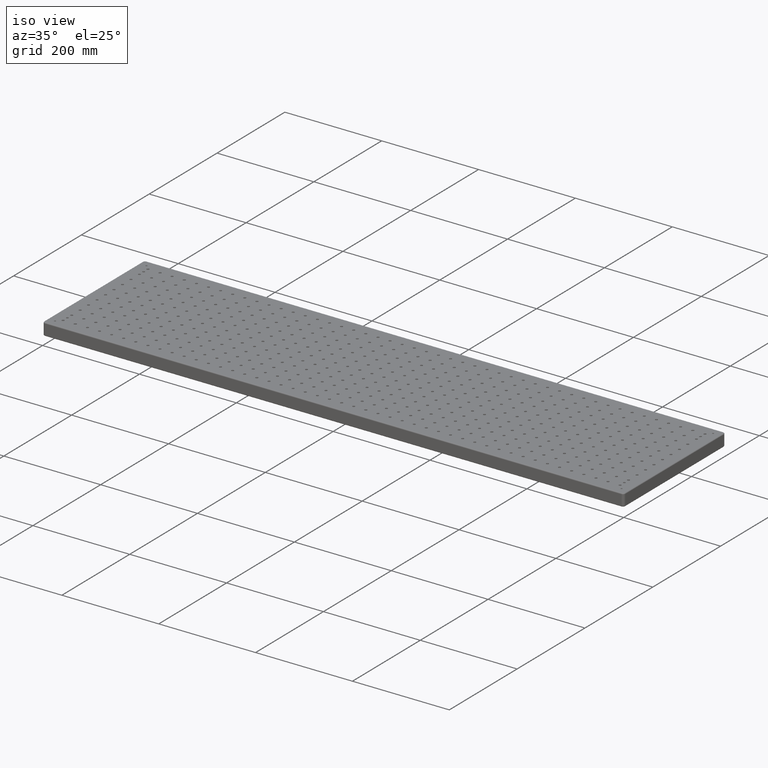
[diagram: clean part render]
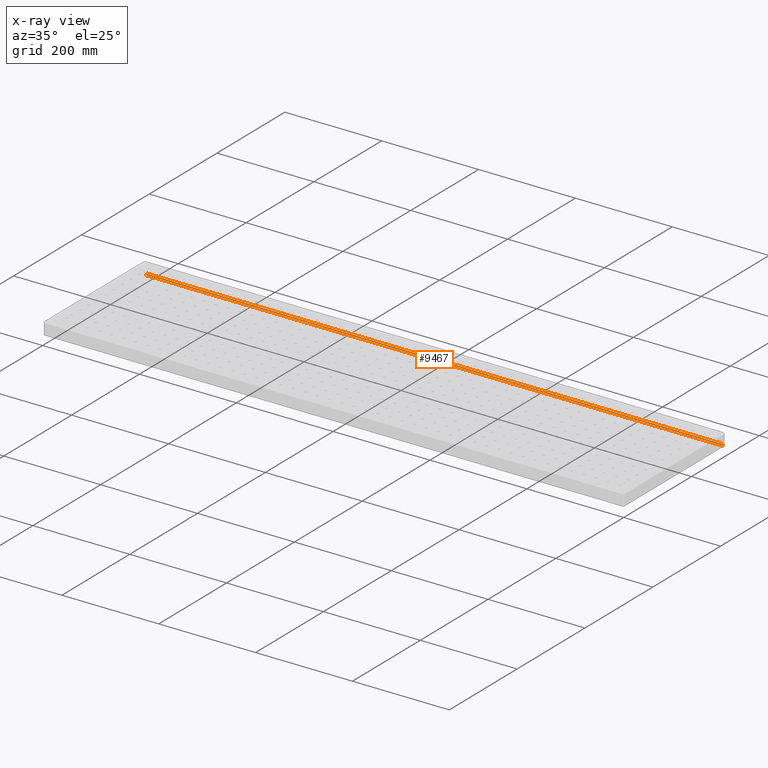
[diagram: x-ray — body ghosted, one internal face saturated and labeled with its STEP entity id]
A machine part, iso view, then the same camera in x-ray: the body is ghosted and one INTERNAL B-rep face — a face not visible from any outside direction — is saturated and labeled: STEP entity #9467.
In plain terms, the highlighted cylindrical surface (edge-blend (fillet) strip) has radius 2 mm, axis along (-1, 0, 0).
Its self-contained STEP definition (entity closure, byte-faithful):
#361 = VERTEX_POINT ( 'NONE', #32983 ) ;
#2339 = ORIENTED_EDGE ( 'NONE', *, *, #34381, .T. ) ;
#3713 = DIRECTION ( 'NONE',  ( 1.000000000000000000, -0.0000000000000000000, 0.0000000000000000000 ) ) ;
#5624 = DIRECTION ( 'NONE',  ( 1.000000000000000000, -0.0000000000000000000, 0.0000000000000000000 ) ) ;
#6771 = ORIENTED_EDGE ( 'NONE', *, *, #9692, .F. ) ;
#8160 = DIRECTION ( 'NONE',  ( 1.000000000000000000, -4.625929269271485800E-017, -0.0000000000000000000 ) ) ;
#8981 = AXIS2_PLACEMENT_3D ( 'NONE', #38976, #5624, #24062 ) ;
#9467 = ADVANCED_FACE ( 'NONE', ( #39057 ), #36168, .T. ) ;
#9692 = EDGE_CURVE ( 'NONE', #32741, #24093, #18888, .T. ) ;
#9813 = DIRECTION ( 'NONE',  ( -1.000000000000000000, 4.625929269271485800E-017, 0.0000000000000000000 ) ) ;
#11742 = ORIENTED_EDGE ( 'NONE', *, *, #23998, .F. ) ;
#12145 = VECTOR ( 'NONE', #9813, 1000.000000000000000 ) ;
#12830 = AXIS2_PLACEMENT_3D ( 'NONE', #13361, #28436, #22785 ) ;
#13361 = CARTESIAN_POINT ( 'NONE',  ( -9.251858538542971600E-017, 298.0000000000000600, -23.39999999999999900 ) ) ;
#16112 = DIRECTION ( 'NONE',  ( 0.0000000000000000000, 0.0000000000000000000, -1.000000000000000000 ) ) ;
#18055 = VECTOR ( 'NONE', #8160, 1000.000000000000000 ) ;
#18815 = ORIENTED_EDGE ( 'NONE', *, *, #30029, .F. ) ;
#18888 = LINE ( 'NONE', #34139, #12145 ) ;
#19133 = CIRCLE ( 'NONE', #8981, 2.000000000000001800 ) ;
#21785 = VERTEX_POINT ( 'NONE', #35911 ) ;
#21934 = CARTESIAN_POINT ( 'NONE',  ( 5.000000000000000000, 298.0000000000000600, -23.39999999999999900 ) ) ;
#22785 = DIRECTION ( 'NONE',  ( -4.625929269271481500E-017, -1.000000000000000000, 0.0000000000000000000 ) ) ;
#23998 = EDGE_CURVE ( 'NONE', #21785, #361, #32962, .T. ) ;
#24062 = DIRECTION ( 'NONE',  ( 0.0000000000000000000, 0.0000000000000000000, -1.000000000000000000 ) ) ;
#24093 = VERTEX_POINT ( 'NONE', #38907 ) ;
#24343 = EDGE_LOOP ( 'NONE', ( #2339, #6771, #18815, #11742 ) ) ;
#25608 = AXIS2_PLACEMENT_3D ( 'NONE', #21934, #3713, #16112 ) ;
#28436 = DIRECTION ( 'NONE',  ( -1.000000000000000000, 4.625929269271485800E-017, 0.0000000000000000000 ) ) ;
#30029 = EDGE_CURVE ( 'NONE', #361, #32741, #19133, .T. ) ;
#32741 = VERTEX_POINT ( 'NONE', #38633 ) ;
#32962 = LINE ( 'NONE', #39781, #18055 ) ;
#32983 = CARTESIAN_POINT ( 'NONE',  ( 1195.000000000000000, 298.0000000000000000, -25.39999999999999900 ) ) ;
#33055 = CIRCLE ( 'NONE', #25608, 2.000000000000001800 ) ;
#34139 = CARTESIAN_POINT ( 'NONE',  ( 0.0000000000000000000, 300.0000000000000600, -23.39999999999999900 ) ) ;
#34381 = EDGE_CURVE ( 'NONE', #21785, #24093, #33055, .T. ) ;
#35911 = CARTESIAN_POINT ( 'NONE',  ( 5.000000000000000000, 298.0000000000000600, -25.39999999999999900 ) ) ;
#36168 = CYLINDRICAL_SURFACE ( 'NONE', #12830, 2.000000000000001800 ) ;
#38633 = CARTESIAN_POINT ( 'NONE',  ( 1195.000000000000000, 300.0000000000000000, -23.39999999999999900 ) ) ;
#38907 = CARTESIAN_POINT ( 'NONE',  ( 5.000000000000000000, 300.0000000000000600, -23.39999999999999900 ) ) ;
#38976 = CARTESIAN_POINT ( 'NONE',  ( 1195.000000000000000, 298.0000000000000000, -23.39999999999999900 ) ) ;
#39057 = FACE_OUTER_BOUND ( 'NONE', #24343, .T. ) ;
#39781 = CARTESIAN_POINT ( 'NONE',  ( 1.378526922242902900E-014, 298.0000000000000600, -25.39999999999999900 ) ) ;